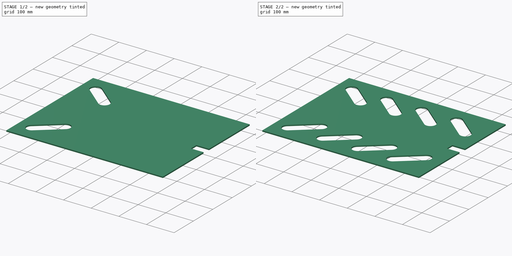
[diagram: build sequence overview — one tinted view per stage of 2, left to right]
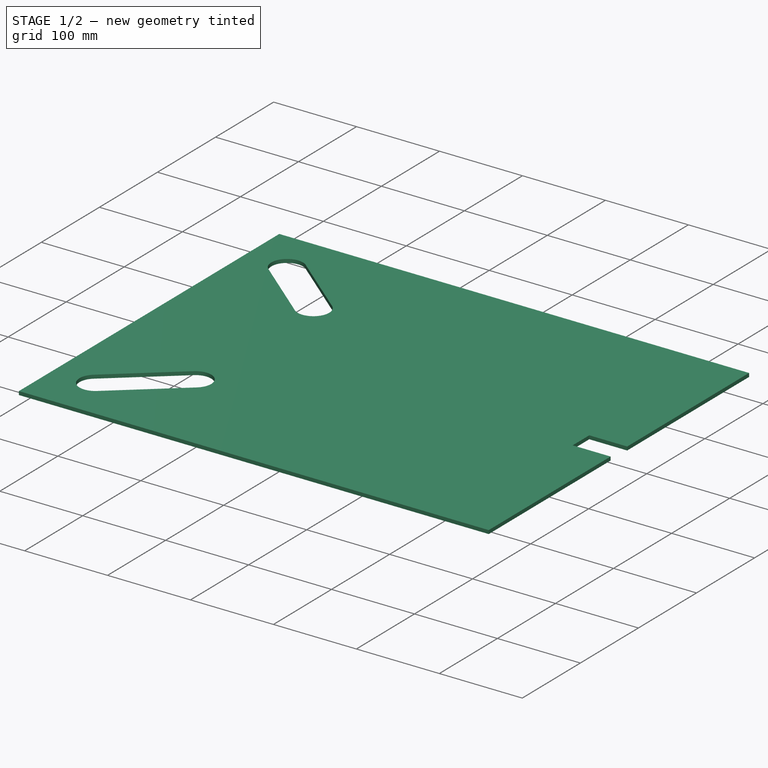
[diagram: stage 1 of 2 — iso view after this stage's code; geometry added in this stage tinted green]
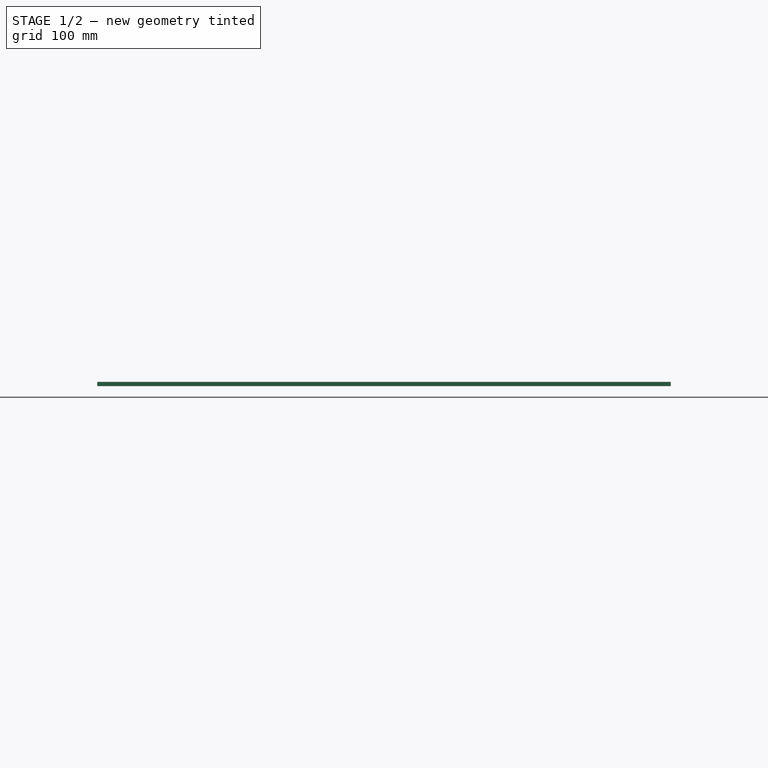
[diagram: stage 1 of 2 — front view after this stage's code; geometry added in this stage tinted green]
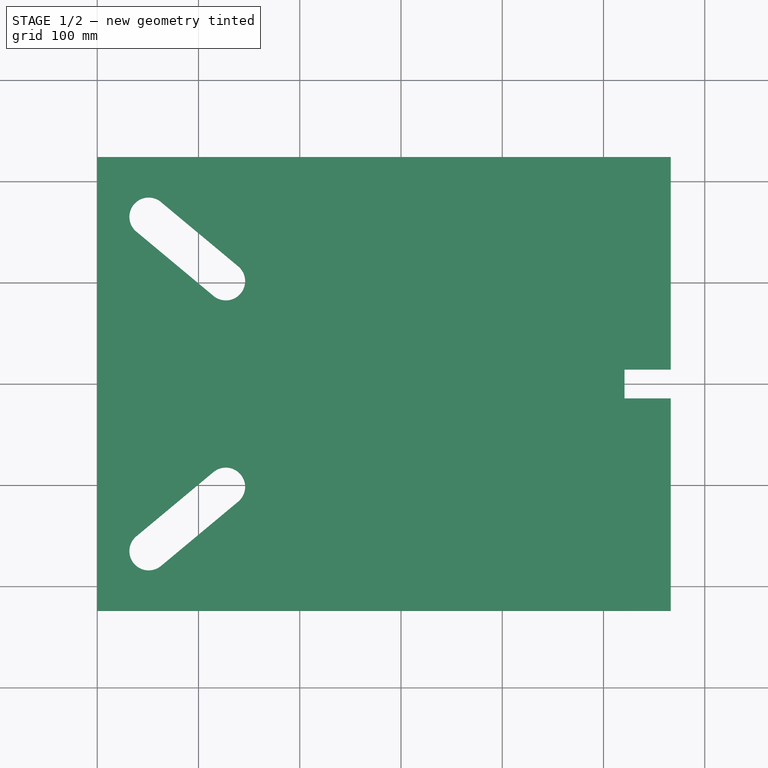
[diagram: stage 1 of 2 — top view after this stage's code; geometry added in this stage tinted green]
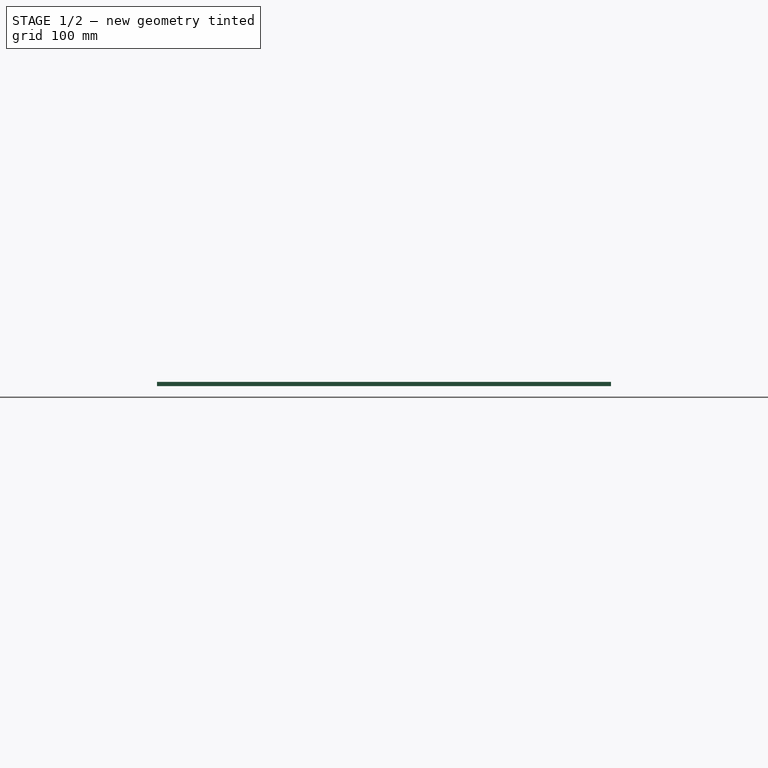
[diagram: stage 1 of 2 — right view after this stage's code; geometry added in this stage tinted green]
FCSTD DOCUMENT  (FreeCAD 0.17R13522 (Git))
Label: brace plate lid upper
License: CreativeCommons Attribution
LicenseURL: http://creativecommons.org/licenses/by/4.0/
objects: Sketcher::SketchObject×2, PartDesign::Pad×1, PartDesign::Pocket×1, PartDesign::LinearPattern×1, PartDesign::Body×1
note: 8 computed .brp shape members not serialized (recipe doc carries the construction recipe); baked Part::Feature solids carry a one-line shape summary decoded from their .brp

FEATURE [Sketcher::SketchObject] Sketch
  MapMode = 5
  Support = -> [XY_Plane]
  sketch-geometry (8):
    g0: LineSegment StartX=0 StartY=224.155 StartZ=0 EndX=566.42 EndY=224.155 EndZ=0
    g1: LineSegment StartX=566.42 StartY=224.155 StartZ=0 EndX=566.42 EndY=14.2875 EndZ=0
    g2: LineSegment StartX=566.42 StartY=-224.155 StartZ=0 EndX=0 EndY=-224.155 EndZ=0
    g3: LineSegment StartX=0 StartY=-224.155 StartZ=0 EndX=0 EndY=224.155 EndZ=0
    g4: LineSegment StartX=520.7 StartY=14.2875 StartZ=0 EndX=566.42 EndY=14.2875 EndZ=0
    g5: LineSegment StartX=566.42 StartY=-14.2875 StartZ=0 EndX=520.7 EndY=-14.2875 EndZ=0
    g6: LineSegment StartX=520.7 StartY=-14.2875 StartZ=0 EndX=520.7 EndY=14.2875 EndZ=0
    g7: LineSegment StartX=566.42 StartY=-14.2875 StartZ=0 EndX=566.42 EndY=-224.155 EndZ=0
  constraints (25):
    c: Coincident(g0,g1)
    c: Coincident(g7,g2)
    c: Coincident(g2,g3)
    c: Coincident(g3,g0)
    c: Horizontal(g0)
    c: Horizontal(g2)
    c: Vertical(g1)
    c: Vertical(g3)
    c: Symmetric(g7,g0,g-1)
    c: PointOnObject(g2,g-2)
    c: DistanceX(g2,g2) = 566.42
    c: DistanceY(g3,g3) = 448.31
    c: Coincident(g5,g6)
    c: Coincident(g6,g4)
    c: Horizontal(g4)
    c: Horizontal(g5)
    c: Vertical(g6)
    c: PointOnObject(g5,g1)
    c: Symmetric(g5,g4,g-1)
    c: DistanceX(g5,g5) = 45.72
    c: DistanceY(g6,g6) = 28.575
    c: PointOnObject(g1,g4)
    c: PointOnObject(g7,g5)
    c: Tangent(g1,g7)
    c: Coincident(g1,g4)
FEATURE [PartDesign::Pad] Pad
  Length = 4.318
  Length2 = 100.076
  Profile = -> Sketch
  Type = 0
FEATURE [Sketcher::SketchObject] Sketch001
  MapMode = 5
  Placement = pos=(0,0,4.318) rot=(0,0,1;0rad)
  Support = -> [Pad]
  sketch-geometry (8):
    g0: ArcOfCircle CenterX=50.8 CenterY=165.1 CenterZ=0 NormalX=0 NormalY=0 NormalZ=1 AngleXU=0 Radius=19.05 StartAngle=0.876058 EndAngle=4.01765
    g1: ArcOfCircle CenterX=127 CenterY=101.6 CenterZ=0 NormalX=0 NormalY=0 NormalZ=1 AngleXU=0 Radius=19.05 StartAngle=4.01765 EndAngle=7.15924
    g2: LineSegment StartX=38.6045 StartY=150.465 StartZ=0 EndX=114.804 EndY=86.9654 EndZ=0
    g3: LineSegment StartX=62.9955 StartY=179.735 StartZ=0 EndX=139.196 EndY=116.235 EndZ=0
    g4: ArcOfCircle CenterX=127 CenterY=-101.6 CenterZ=0 NormalX=0 NormalY=0 NormalZ=1 AngleXU=0 Radius=19.05 StartAngle=5.40713 EndAngle=8.54872
    g5: ArcOfCircle CenterX=50.8 CenterY=-165.1 CenterZ=0 NormalX=0 NormalY=0 NormalZ=1 AngleXU=0 Radius=19.05 StartAngle=2.26553 EndAngle=5.40713
    g6: LineSegment StartX=114.804 StartY=-86.9654 StartZ=0 EndX=38.6045 EndY=-150.465 EndZ=0
    g7: LineSegment StartX=139.196 StartY=-116.235 StartZ=0 EndX=62.9955 EndY=-179.735 EndZ=0
  constraints (18):
    c: Tangent(g0,g3) = 1.5708
    c: Tangent(g0,g2) = -1.5708
    c: Tangent(g2,g1) = -1.5708
    c: Tangent(g3,g1) = 1.5708
    c: Equal(g0,g1)
    c: Radius(g1) = 19.05
    c: Tangent(g4,g7) = 1.5708
    c: Tangent(g4,g6) = -1.5708
    c: Tangent(g6,g5) = -1.5708
    c: Tangent(g7,g5) = 1.5708
    c: Equal(g4,g5)
    c: Equal(g1,g4)
    c: Symmetric(g5,g0,g-1)
    c: Symmetric(g4,g1,g-1)
    c: DistanceX(g-1,g0) = 50.8
    c: DistanceX(g-1,g4) = 127
    c: DistanceY(g4,g1) = 203.2
    c: DistanceY(g5,g0) = 330.2
FEATURE [PartDesign::Pocket] Pocket
  BaseFeature = -> Pad
  Length = 5.08
  Length2 = 100.076
  Profile = -> Sketch001
  Type = 0
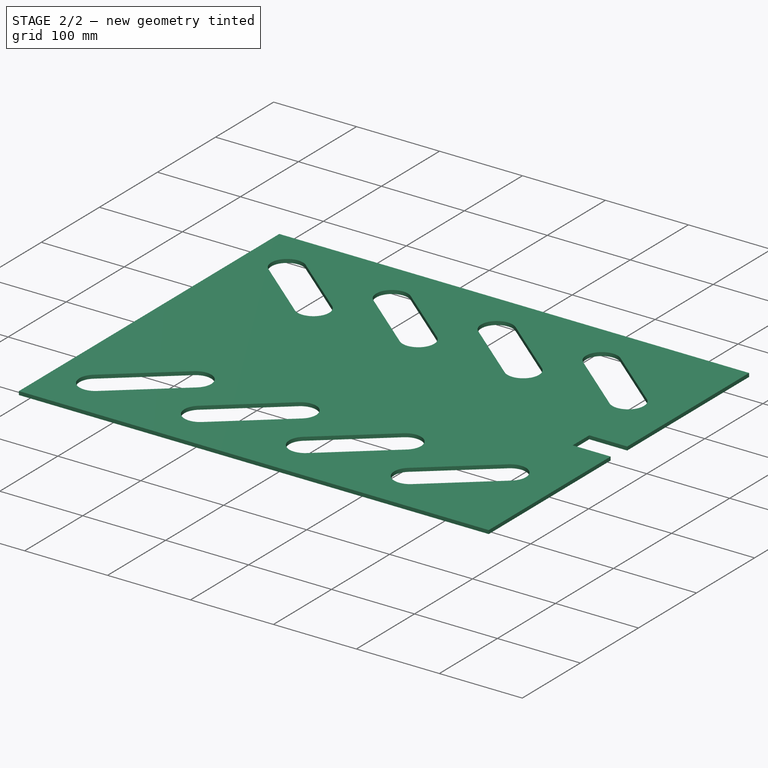
[diagram: stage 2 of 2 — iso view after this stage's code; geometry added in this stage tinted green]
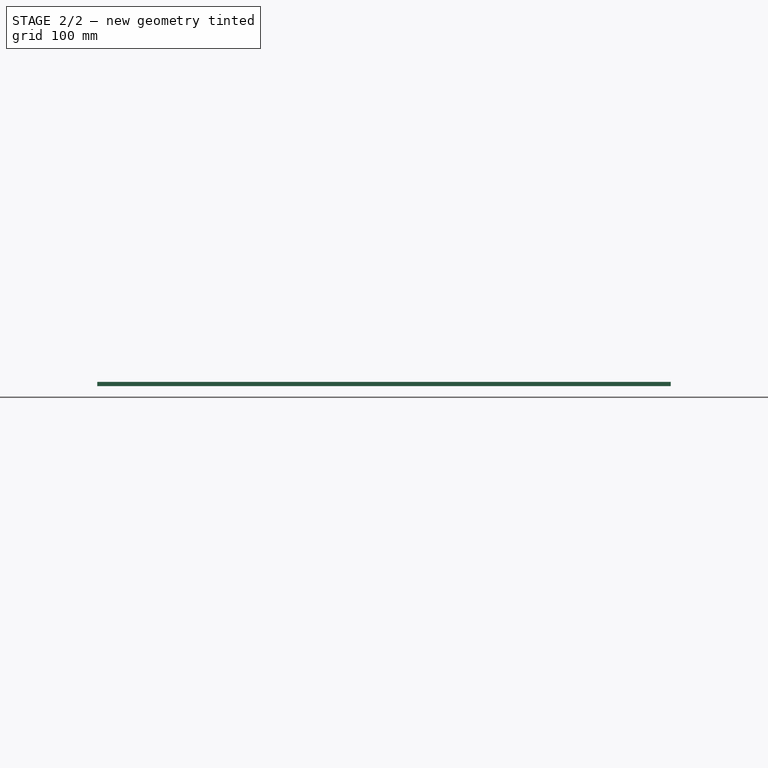
[diagram: stage 2 of 2 — front view after this stage's code; geometry added in this stage tinted green]
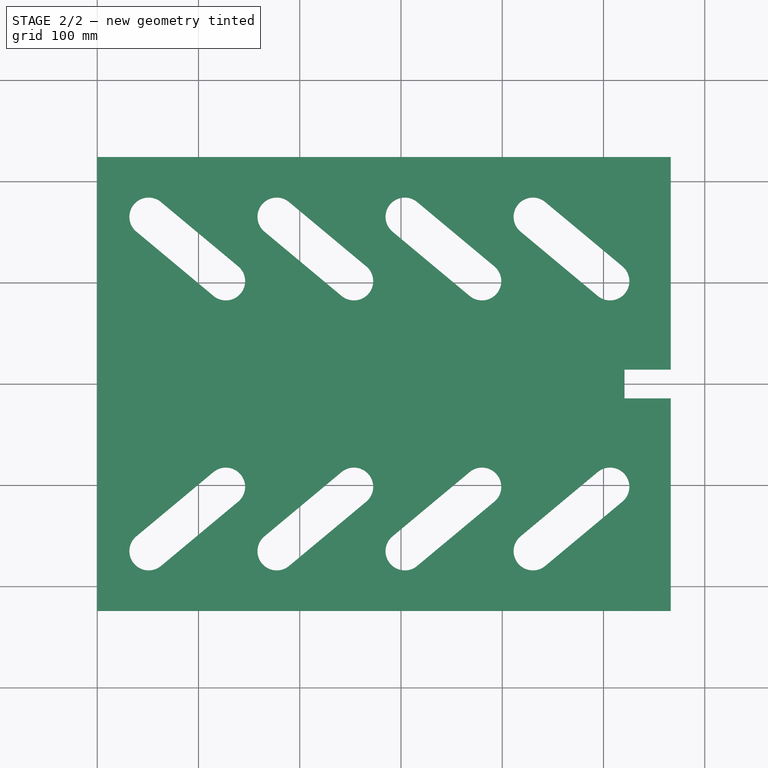
[diagram: stage 2 of 2 — top view after this stage's code; geometry added in this stage tinted green]
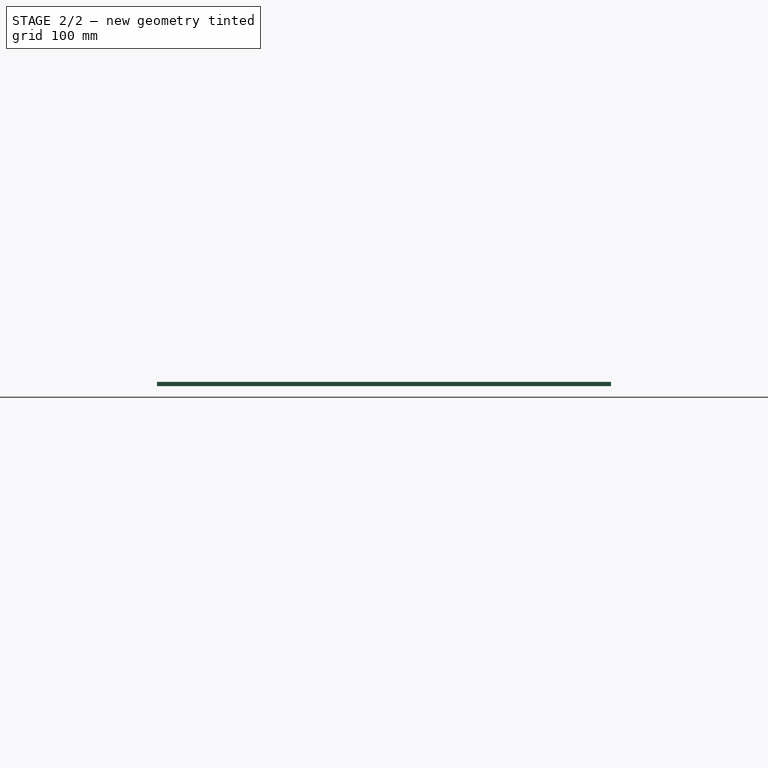
[diagram: stage 2 of 2 — right view after this stage's code; geometry added in this stage tinted green]
FEATURE [PartDesign::LinearPattern] LinearPattern
  BaseFeature = -> Pocket
  Direction = -> Sketch001 [H_Axis]
  Length = 379.476
  Occurrences = 4
  Originals = -> [Pocket]
FEATURE [PartDesign::Body] Body
  Group = -> [Sketch,Pad,Sketch001,Pocket,LinearPattern]
  Origin = -> Origin
  Tip = -> LinearPattern
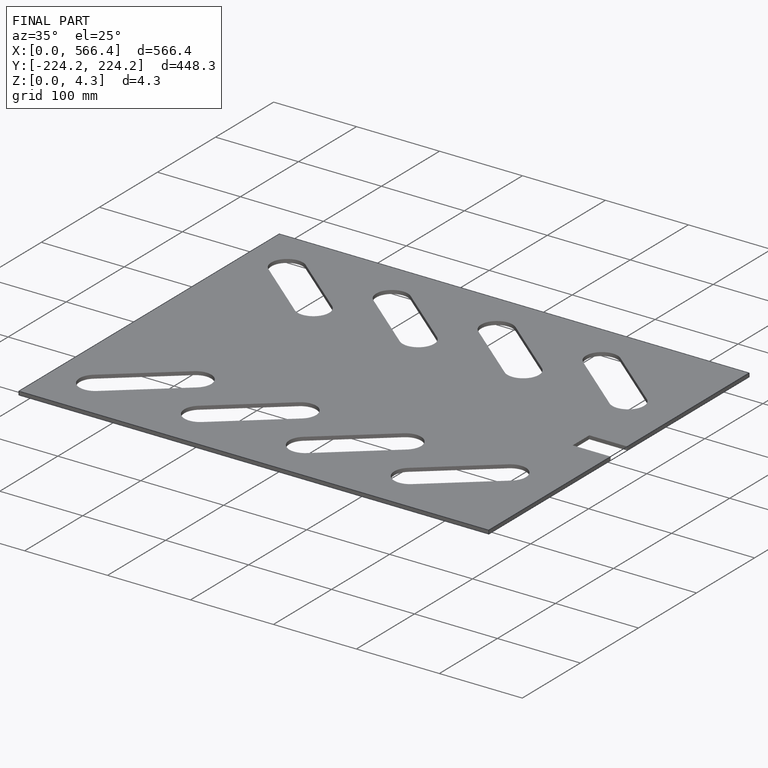
[diagram: finished part — iso view with bounding-box wireframe]
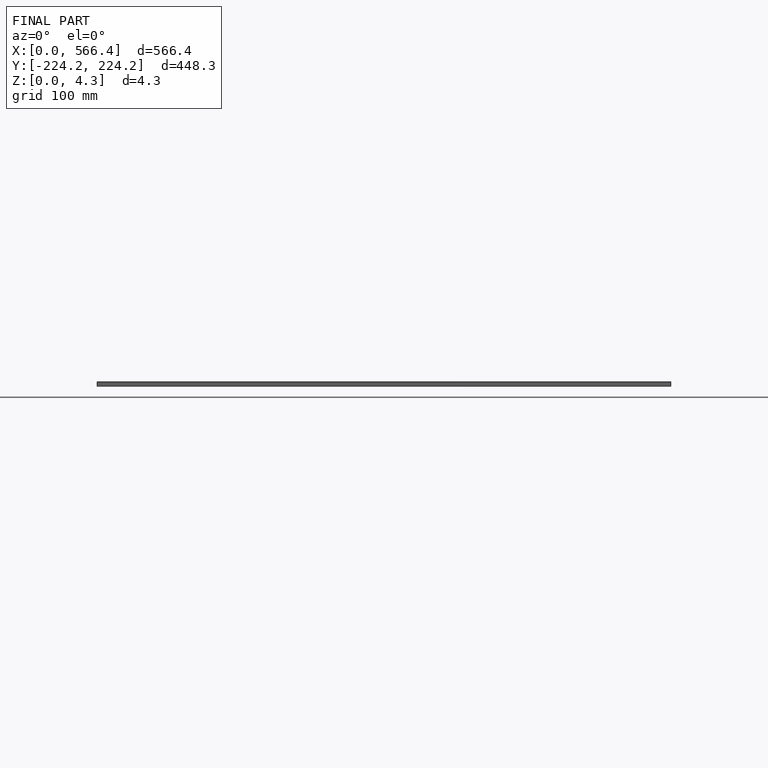
[diagram: finished part — front view with bounding-box wireframe]
